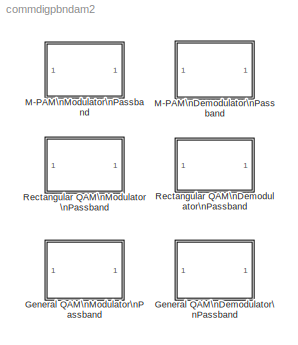
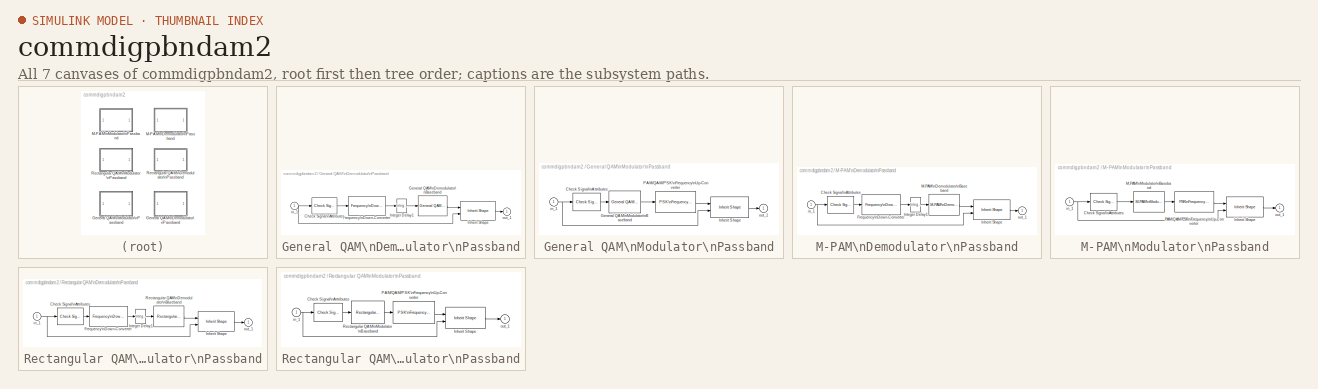
[diagram: thumbnail index - all 7 canvases of the model, root first then tree order]
MODEL commdigpbndam2
KIND library
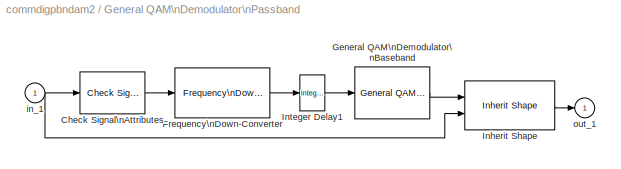
BLOCK [SubSystem] General QAM\nDemodulator\nPassband
  MaskCallbackString = |||||
  MaskDescription = Demodulate the input signal using the quadrature amplitude modulation method.\n\nThe input signal must be a sample-based scalar.
  MaskDisplay = plot(0,0,100,100,[5+1.5*[[0:.8:10] [10:1.6:20] [20:.8:30]] 50 50 50 50+15*[0 1 1 2 2 3]],[85+10*[sin([0:.8:10]*pi*2/5) sin([10:1.6:20]*pi/5) sin([20:.8:30]*pi*2/5)] 85 99 75 85+8*[1 1 -1 -1 1 1]]);\ndisp('\\nGeneral\\nQAM')
  MaskEnableString = on,on,on,on,on,on
  MaskHelp = helpview(commbhelp)
  MaskIconFrame = on
  MaskIconOpaque = on
  MaskIconRotate = none
  MaskIconUnits = autoscale
  MaskPromptString = Signal constellation:|Symbol period (s):|Baseband samples per symbol:|Carrier frequency (Hz):|Carrier initial phase (rad):|Input sample time (s):
  MaskStyleString = edit,edit,edit,edit,edit,edit
  MaskToolTipString = on,on,on,on,on,on
  MaskTunableValueString = on,on,on,on,on,on
  MaskType = General QAM Demodulator Passband
  MaskValueString = [exp(2*pi*i*[0:6]/7)]|1/100|1|3000|0|1/8000
  MaskVarAliasString = ,,,,,
  MaskVariables = SigCon=@1;td=@2;numSamp=@3;Fc=@4;Ph=@5;InSamp=@6;
  MaskVisibilityString = on,on,on,on,on,on
  Ports = [1, 1]
  TreatAsAtomicUnit = off
BLOCK [Reference] General QAM\nDemodulator\nPassband/Check Signal\nAttributes  REF=dspsigattribs/Check Signal\nAttributes
  Complexity = Ignore
  DatatypeCheckMethod = Ignore
  DatatypeGeneral = Boolean
  Dimensions = 1-D
  DimsCheckMethod = Ignore
  DtypeFixedSpecific = Any fixed-point
  DtypeFloatSpecific = Any floating-point
  DtypeIntSpecific = Any integer
  Frame = Frame-based
  Ports = [1, 1]
  SampleMode = Ignore
  SigAttribCheckMethod = Matches attributes exactly
  SourceBlock = dspsigattribs/Check Signal\nAttributes
  SourceType = Check Signal Attributes
BLOCK [Reference] General QAM\nDemodulator\nPassband/Frequency\nDown-Converter  REF=commblksprivate/Frequency\nDown-Converter
  Fc = Fc
  Ph = Ph
  Ports = [1, 1]
  SourceBlock = commblksprivate/Frequency\nDown-Converter
  SourceType = Frequency down-converter
  Tin = InSamp
  Tout = td/numSamp
BLOCK [Reference] General QAM\nDemodulator\nPassband/General QAM\nDemodulator\nBaseband  REF=commdigbbndam2/General QAM\nDemodulator\nBaseband
  Ports = [1, 1]
  SigCon = SigCon
  SourceBlock = commdigbbndam2/General QAM\nDemodulator\nBaseband
  SourceType = General QAM Demodulator Baseband
  numSamp = numSamp
BLOCK [Reference] General QAM\nDemodulator\nPassband/Inherit Shape  REF=commblksprivate/Inherit Shape
  Ports = [2, 1]
  SourceBlock = commblksprivate/Inherit Shape
  SourceType = Inherit Shape
BLOCK [Reference] General QAM\nDemodulator\nPassband/Integer Delay1  REF=dspsigops/Integer Delay
  Ports = [1, 1]
  SourceBlock = dspsigops/Integer Delay
  SourceType = Integer Delay
  delay = numSamp-1
  ic = 0
BLOCK [Inport] General QAM\nDemodulator\nPassband/in_1
BLOCK [Outport] General QAM\nDemodulator\nPassband/out_1
  InitialOutput = 0
BLOCK [SubSystem] General QAM\nModulator\nPassband
  MaskCallbackString = |||||
  MaskDescription = Modulate the input signal using the quadrature amplitude modulation method.\n\nThe block only accepts integers as input. The input signal must be a sample-based scalar. \n\nThe input sample time must equal the symbol period.
  MaskDisplay = plot(0,0,100,100,[5+15*[0 1 1 2 2 3] 50 50 50 50+1.5*[[0:.8:10] [10:1.6:20] [20:.8:30]]],[85+8*[1 1 -1 -1 1 1] 85 99 75 85+10*[sin([0:.8:10]*pi*2/5) sin([10:1.6:20]*pi/5) sin([20:.8:30]*pi*2/5)]]);\ndisp('\\nGeneral\\nQAM')
  MaskEnableString = on,on,on,on,on,on
  MaskHelp = helpview(commbhelp)
  MaskIconFrame = on
  MaskIconOpaque = on
  MaskIconRotate = none
  MaskIconUnits = autoscale
  MaskPromptString = Signal constellation:|Symbol period (s):|Baseband samples per symbol:|Carrier frequency (Hz):|Carrier initial phase (rad):|Output sample time (s):
  MaskStyleString = edit,edit,edit,edit,edit,edit
  MaskToolTipString = on,on,on,on,on,on
  MaskTunableValueString = on,on,on,on,on,on
  MaskType = General QAM Modulator Passband
  MaskValueString = [exp(2*pi*i*[0:6]/7)]|1/100|1|3000|0|1/8000
  MaskVarAliasString = ,,,,,
  MaskVariables = SigCon=@1;td=@2;numSamp=@3;Fc=@4;Ph=@5;OutSamp=@6;
  MaskVisibilityString = on,on,on,on,on,on
  Ports = [1, 1]
  TreatAsAtomicUnit = off
BLOCK [Reference] General QAM\nModulator\nPassband/Check Signal\nAttributes  REF=dspsigattribs/Check Signal\nAttributes
  Complexity = Ignore
  DatatypeCheckMethod = Ignore
  DatatypeGeneral = Boolean
  Dimensions = 1-D
  DimsCheckMethod = Ignore
  DtypeFixedSpecific = Any fixed-point
  DtypeFloatSpecific = Any floating-point
  DtypeIntSpecific = Any integer
  Frame = Frame-based
  Ports = [1, 1]
  SampleMode = Ignore
  SigAttribCheckMethod = Matches attributes exactly
  SourceBlock = dspsigattribs/Check Signal\nAttributes
  SourceType = Check Signal Attributes
BLOCK [Reference] General QAM\nModulator\nPassband/General QAM\nModulator\nBaseband  REF=commdigbbndam2/General QAM\nModulator\nBaseband
  Ports = [1, 1]
  SigCon = SigCon
  SourceBlock = commdigbbndam2/General QAM\nModulator\nBaseband
  SourceType = General QAM Modulator Baseband
  numSamp = numSamp
BLOCK [Reference] General QAM\nModulator\nPassband/Inherit Shape  REF=commblksprivate/Inherit Shape
  Ports = [2, 1]
  SourceBlock = commblksprivate/Inherit Shape
  SourceType = Inherit Shape
BLOCK [Reference] General QAM\nModulator\nPassband/PAM//QAM//PSK\nFrequency\nUp-Converter  REF=commblksprivate/PAM//QAM//PSK\nFrequency\nUp-Converter
  Fc = Fc
  Ph = Ph
  Ports = [1, 1]
  SourceBlock = commblksprivate/PAM//QAM//PSK\nFrequency\nUp-Converter
  SourceType = PAM/QAM/PSK Frequency Up-Converter
  Tin = td/numSamp
  Tout = OutSamp
BLOCK [Inport] General QAM\nModulator\nPassband/in_1
BLOCK [Outport] General QAM\nModulator\nPassband/out_1
  InitialOutput = 0
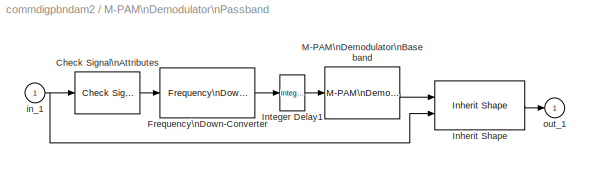
BLOCK [SubSystem] M-PAM\nDemodulator\nPassband
  MaskCallbackString = |commblkpbndpammod(gcb,'InType');||commblkpbndpammod(gcb,'PowType');||||||||
  MaskDescription = Demodulate the input signal using the pulse amplitude modulation method. The M-ary number value must be an even integer.\n\nThe input signal must be a sample-based scalar. In case of bit output, the width of the output is the number of bits per symbol. The symbols can be either binary-demapped or Gray-demapped into bits.
  MaskDisplay = plot(0,0,100,100,[5+1.5*[[0:.8:10] [10:1.6:20] [20:.8:30]] 50 50 50 50+15*[0 1 1 2 2 3]],[85+10*[sin([0:.8:10]*pi*2/5) sin([10:1.6:20]*pi/5) sin([20:.8:30]*pi*2/5)] 85 99 75 85+8*[1 1 -1 -1 1 1]]);\ndisp('M-PAM');
  MaskEnableString = on,on,off,on,on,on,on,on,on,on,on,on
  MaskHelp = helpview(commbhelp)
  MaskIconFrame = on
  MaskIconOpaque = on
  MaskIconRotate = none
  MaskIconUnits = autoscale
  MaskInitialization = commblkdyampmdemod('M-PAM Demodulator Baseband','update');\ncommblkpbndpammod(gcb,'init');\n
  MaskPromptString = M-ary number:|Output type:|Constellation ordering:|Normalization method:|Minimum distance:|Average power (watts):|Peak power (watts):|Symbol period (s):|Baseband samples per symbol:|Carrier frequency (Hz):|Carrier initial phase (rad):|Input sample time (s):
  MaskSelfModifiable = on
  MaskStyleString = edit,popup(Bit|Integer),popup(Binary|Gray),popup(Min. distance between symbols|Average Power|Peak Power),edit,edit,edit,edit,edit,edit,edit,edit
  MaskToolTipString = on,on,on,on,on,on,on,on,on,on,on,on
  MaskTunableValueString = off,off,off,off,off,off,off,off,off,off,off,off
  MaskType = M-PAM Demodulator Passband
  MaskValueString = 4|Integer|Binary|Min. distance between symbols|2|1|1|1/100|1|3000|0|1/8000
  MaskVarAliasString = ,,,,,,,,,,,
  MaskVariables = M=@1;OutType=@2;Dec=@3;PowType=@4;MinDist=@5;AvgPow=@6;PeakPow=@7;td=@8;numSamp=@9;Fc=@10;Ph=@11;InSamp=@12;
  MaskVisibilityString = on,on,on,on,on,off,off,on,on,on,on,on
  Ports = [1, 1]
  TreatAsAtomicUnit = off
BLOCK [Reference] M-PAM\nDemodulator\nPassband/Check Signal\nAttributes  REF=dspsigattribs/Check Signal\nAttributes
  Complexity = Ignore
  DatatypeCheckMethod = Ignore
  DatatypeGeneral = Boolean
  Dimensions = 1-D
  DimsCheckMethod = Ignore
  DtypeFixedSpecific = Any fixed-point
  DtypeFloatSpecific = Any floating-point
  DtypeIntSpecific = Any integer
  Frame = Frame-based
  Ports = [1, 1]
  SampleMode = Ignore
  SigAttribCheckMethod = Matches attributes exactly
  SourceBlock = dspsigattribs/Check Signal\nAttributes
  SourceType = Check Signal Attributes
BLOCK [Reference] M-PAM\nDemodulator\nPassband/Frequency\nDown-Converter  REF=commblksprivate/Frequency\nDown-Converter
  Fc = Fc
  Ph = Ph
  Ports = [1, 1]
  SourceBlock = commblksprivate/Frequency\nDown-Converter
  SourceType = Frequency down-converter
  Tin = InSamp
  Tout = td/numSamp
BLOCK [Reference] M-PAM\nDemodulator\nPassband/Inherit Shape  REF=commblksprivate/Inherit Shape
  Ports = [2, 1]
  SourceBlock = commblksprivate/Inherit Shape
  SourceType = Inherit Shape
BLOCK [Reference] M-PAM\nDemodulator\nPassband/Integer Delay1  REF=dspsigops/Integer Delay
  Ports = [1, 1]
  SourceBlock = dspsigops/Integer Delay
  SourceType = Integer Delay
  delay = numSamp-1
  ic = 0
BLOCK [Reference] M-PAM\nDemodulator\nPassband/M-PAM\nDemodulator\nBaseband  REF=commdigbbndam2/M-PAM\nDemodulator\nBaseband
  AvgPow = AvgPow
  Dec = Binary
  M = M
  MinDist = MinDist
  OutType = Integer
  PeakPow = PeakPow
  Ports = [1, 1]
  PowType = Min. distance between symbols
  SourceBlock = commdigbbndam2/M-PAM\nDemodulator\nBaseband
  SourceType = M-PAM Demodulator Baseband
  numSamp = numSamp
BLOCK [Inport] M-PAM\nDemodulator\nPassband/in_1
BLOCK [Outport] M-PAM\nDemodulator\nPassband/out_1
  InitialOutput = 0
BLOCK [SubSystem] M-PAM\nModulator\nPassband
  MaskCallbackString = |commblkpbndpammod(gcb,'InType');||commblkpbndpammod(gcb,'PowType');||||||||
  MaskDescription = Modulate the input signal using the pulse amplitude modulation method.\nThe M-ary number value must be an even integer.\n\nThe input signal must be sample-based. In case of integer input, the input must be a scalar. In case of bit input, the width of the input must equal the number of bits per symbol. The bits can be either binary-mapped or Gray-mapped into symbols.\n\nThe input sample time must e...<+23ch>
  MaskDisplay = plot(0,0,100,100,[5+15*[0 1 1 2 2 3] 50 50 50 50+1.5*[[0:.8:10] [10:1.6:20] [20:.8:30]]],[85+8*[1 1 -1 -1 1 1] 85 99 75 85+10*[sin([0:.8:10]*pi*2/5) sin([10:1.6:20]*pi/5) sin([20:.8:30]*pi*2/5)]]);\ndisp('M-PAM')
  MaskEnableString = on,on,off,on,on,on,on,on,on,on,on,on
  MaskHelp = helpview(commbhelp)
  MaskIconFrame = on
  MaskIconOpaque = on
  MaskIconRotate = none
  MaskIconUnits = autoscale
  MaskInitialization = commblkdyampmmod('M-PAM Modulator Baseband','update');\ncommblkpbndpammod(gcb,'init');\n
  MaskPromptString = M-ary number:|Input type:|Constellation ordering:|Normalization method:|Minimum distance:|Average power (watts):|Peak power (watts):|Symbol period (s):|Baseband samples per symbol:|Carrier frequency (Hz):|Carrier initial phase (rad):|Output sample time (s):
  MaskSelfModifiable = on
  MaskStyleString = edit,popup(Bit|Integer),popup(Binary|Gray),popup(Min. distance between symbols|Average Power|Peak Power),edit,edit,edit,edit,edit,edit,edit,edit
  MaskToolTipString = on,on,on,on,on,on,on,on,on,on,on,on
  MaskTunableValueString = off,off,off,off,off,off,off,off,off,off,off,off
  MaskType = M-PAM Modulator Passband
  MaskValueString = 4|Integer|Binary|Min. distance between symbols|2|1|1|1/100|1|3000|0|1/8000
  MaskVarAliasString = ,,,,,,,,,,,
  MaskVariables = M=@1;InType=@2;Enc=@3;PowType=@4;MinDist=@5;AvgPow=@6;PeakPow=@7;td=@8;numSamp=@9;Fc=@10;Ph=@11;OutSamp=@12;
  MaskVisibilityString = on,on,on,on,on,off,off,on,on,on,on,on
  Ports = [1, 1]
  TreatAsAtomicUnit = off
BLOCK [Reference] M-PAM\nModulator\nPassband/Check Signal\nAttributes  REF=dspsigattribs/Check Signal\nAttributes
  Complexity = Ignore
  DatatypeCheckMethod = Ignore
  DatatypeGeneral = Boolean
  Dimensions = 1-D
  DimsCheckMethod = Ignore
  DtypeFixedSpecific = Any fixed-point
  DtypeFloatSpecific = Any floating-point
  DtypeIntSpecific = Any integer
  Frame = Frame-based
  Ports = [1, 1]
  SampleMode = Ignore
  SigAttribCheckMethod = Matches attributes exactly
  SourceBlock = dspsigattribs/Check Signal\nAttributes
  SourceType = Check Signal Attributes
BLOCK [Reference] M-PAM\nModulator\nPassband/Inherit Shape  REF=commblksprivate/Inherit Shape
  Ports = [2, 1]
  SourceBlock = commblksprivate/Inherit Shape
  SourceType = Inherit Shape
BLOCK [Reference] M-PAM\nModulator\nPassband/M-PAM\nModulator\nBaseband  REF=commdigbbndam2/M-PAM\nModulator\nBaseband
  AvgPow = AvgPow
  Enc = Binary
  InType = Integer
  M = M
  MinDist = MinDist
  PeakPow = PeakPow
  Ports = [1, 1]
  PowType = Min. distance between symbols
  SourceBlock = commdigbbndam2/M-PAM\nModulator\nBaseband
  SourceType = M-PAM Modulator Baseband
  numSamp = numSamp
BLOCK [Reference] M-PAM\nModulator\nPassband/PAM//QAM//PSK\nFrequency\nUp-Converter  REF=commblksprivate/PAM//QAM//PSK\nFrequency\nUp-Converter
  Fc = Fc
  Ph = Ph
  Ports = [1, 1]
  SourceBlock = commblksprivate/PAM//QAM//PSK\nFrequency\nUp-Converter
  SourceType = PAM/QAM/PSK Frequency Up-Converter
  Tin = td/numSamp
  Tout = OutSamp
BLOCK [Inport] M-PAM\nModulator\nPassband/in_1
BLOCK [Outport] M-PAM\nModulator\nPassband/out_1
  InitialOutput = 0
BLOCK [SubSystem] Rectangular QAM\nDemodulator\nPassband
  MaskCallbackString = |commblkpbndqammod(gcb,'InType');||commblkpbndqammod(gcb,'PowType');||||||||
  MaskDescription = Demodulate the input signal using the rectangular quadrature amplitude modulation method.\nThe M-ary number value needs to be an integer power of two.\n\nThe input signal must be a sample-based scalar. In case of bit output, the width of the output is the number of bits per symbol. The symbols can be either binary-demapped or Gray-demapped into bits.
  MaskDisplay = plot(0,0,100,100,[5+1.5*[[0:.8:10] [10:1.6:20] [20:.8:30]] 50 50 50 50+15*[0 1 1 2 2 3]],[85+10*[sin([0:.8:10]*pi*2/5) sin([10:1.6:20]*pi/5) sin([20:.8:30]*pi*2/5)] 85 99 75 85+8*[1 1 -1 -1 1 1]]);\ndisp('\\nRectangular\\nQAM')
  MaskEnableString = on,on,off,on,on,on,on,on,on,on,on,on
  MaskHelp = helpview(commbhelp)
  MaskIconFrame = on
  MaskIconOpaque = on
  MaskIconRotate = none
  MaskIconUnits = autoscale
  MaskInitialization = commblkdyampmdemod('Rectangular QAM Demodulator Baseband','update');\ncommblkpbndqammod(gcb,'init');\n
  MaskPromptString = M-ary number:|Output type:|Constellation ordering:|Normalization method:|Minimum distance:|Average power (watts):|Peak power (watts):|Symbol period (s):|Baseband samples per symbol:|Carrier frequency (Hz):|Carrier initial phase (rad):|Input sample time (s):
  MaskSelfModifiable = on
  MaskStyleString = edit,popup(Bit|Integer),popup(Binary|Gray),popup(Min. distance between symbols|Average Power|Peak Power),edit,edit,edit,edit,edit,edit,edit,edit
  MaskToolTipString = on,on,on,on,on,on,on,on,on,on,on,on
  MaskTunableValueString = off,off,off,off,off,off,off,off,off,off,off,off
  MaskType = Rectangular QAM Demodulator Passband
  MaskValueString = 16|Integer|Binary|Min. distance between symbols|2|1|1|1/100|1|3000|0|1/8000
  MaskVarAliasString = ,,,,,,,,,,,
  MaskVariables = M=@1;OutType=@2;Dec=@3;PowType=@4;MinDist=@5;AvgPow=@6;PeakPow=@7;td=@8;numSamp=@9;Fc=@10;Ph=@11;InSamp=@12;
  MaskVisibilityString = on,on,on,on,on,off,off,on,on,on,on,on
  Ports = [1, 1]
  TreatAsAtomicUnit = off
BLOCK [Reference] Rectangular QAM\nDemodulator\nPassband/Check Signal\nAttributes  REF=dspsigattribs/Check Signal\nAttributes
  Complexity = Ignore
  DatatypeCheckMethod = Ignore
  DatatypeGeneral = Boolean
  Dimensions = 1-D
  DimsCheckMethod = Ignore
  DtypeFixedSpecific = Any fixed-point
  DtypeFloatSpecific = Any floating-point
  DtypeIntSpecific = Any integer
  Frame = Frame-based
  Ports = [1, 1]
  SampleMode = Ignore
  SigAttribCheckMethod = Matches attributes exactly
  SourceBlock = dspsigattribs/Check Signal\nAttributes
  SourceType = Check Signal Attributes
BLOCK [Reference] Rectangular QAM\nDemodulator\nPassband/Frequency\nDown-Converter  REF=commblksprivate/Frequency\nDown-Converter
  Fc = Fc
  Ph = Ph
  Ports = [1, 1]
  SourceBlock = commblksprivate/Frequency\nDown-Converter
  SourceType = Frequency down-converter
  Tin = InSamp
  Tout = td/numSamp
BLOCK [Reference] Rectangular QAM\nDemodulator\nPassband/Inherit Shape  REF=commblksprivate/Inherit Shape
  Ports = [2, 1]
  SourceBlock = commblksprivate/Inherit Shape
  SourceType = Inherit Shape
BLOCK [Reference] Rectangular QAM\nDemodulator\nPassband/Integer Delay1  REF=dspsigops/Integer Delay
  Ports = [1, 1]
  SourceBlock = dspsigops/Integer Delay
  SourceType = Integer Delay
  delay = numSamp-1
  ic = 0
BLOCK [Reference] Rectangular QAM\nDemodulator\nPassband/Rectangular QAM\nDemodulator\nBaseband  REF=commdigbbndam2/Rectangular QAM\nDemodulator\nBaseband
  AvgPow = AvgPow
  Dec = Binary
  M = M
  MinDist = MinDist
  OutType = Integer
  PeakPow = PeakPow
  Ph = 0
  Ports = [1, 1]
  PowType = Min. distance between symbols
  SourceBlock = commdigbbndam2/Rectangular QAM\nDemodulator\nBaseband
  SourceType = Rectangular QAM Demodulator Baseband
  numSamp = numSamp
BLOCK [Inport] Rectangular QAM\nDemodulator\nPassband/in_1
BLOCK [Outport] Rectangular QAM\nDemodulator\nPassband/out_1
  InitialOutput = 0
BLOCK [SubSystem] Rectangular QAM\nModulator\nPassband
  MaskCallbackString = |commblkpbndqammod(gcb,'InType');||commblkpbndqammod(gcb,'PowType');||||||||
  MaskDescription = Modulate the input signal using the rectangular quadrature amplitude modulation method.\nThe M-ary number value must be an integer power of two.\n\nThe input signal must be sample-based. In case of integer input, the input must be a scalar. In case of bit input, the width of the input must equal the number of bits per symbol. The bits can be either binary-mapped or Gray-mapped into symbols.\n\nThe...<+48ch>
  MaskDisplay = plot(0,0,100,100,[5+15*[0 1 1 2 2 3] 50 50 50 50+1.5*[[0:.8:10] [10:1.6:20] [20:.8:30]]],[85+8*[1 1 -1 -1 1 1] 85 99 75 85+10*[sin([0:.8:10]*pi*2/5) sin([10:1.6:20]*pi/5) sin([20:.8:30]*pi*2/5)]]);\ndisp('\\nRectangular\\nQAM')
  MaskEnableString = on,on,off,on,on,on,on,on,on,on,on,on
  MaskHelp = helpview(commbhelp)
  MaskIconFrame = on
  MaskIconOpaque = on
  MaskIconRotate = none
  MaskIconUnits = autoscale
  MaskInitialization = commblkdyampmmod('Rectangular QAM Modulator Baseband','update');\ncommblkpbndqammod(gcb,'init');\n
  MaskPromptString = M-ary number:|Input type:|Constellation ordering:|Normalization method:|Minimum distance:|Average power (watts):|Peak power (watts):|Symbol period (s):|Baseband samples per symbol:|Carrier frequency (Hz):|Carrier initial phase (rad):|Output sample time (s):
  MaskSelfModifiable = on
  MaskStyleString = edit,popup(Bit|Integer),popup(Binary|Gray),popup(Min. distance between symbols|Average Power|Peak Power),edit,edit,edit,edit,edit,edit,edit,edit
  MaskToolTipString = on,on,on,on,on,on,on,on,on,on,on,on
  MaskTunableValueString = off,off,off,off,off,off,off,off,off,off,off,off
  MaskType = Rectangular QAM Modulator Passband
  MaskValueString = 16|Integer|Binary|Min. distance between symbols|2|1|1|1/100|1|3000|0|1/8000
  MaskVarAliasString = ,,,,,,,,,,,
  MaskVariables = M=@1;InType=@2;Enc=@3;PowType=@4;MinDist=@5;AvgPow=@6;PeakPow=@7;td=@8;numSamp=@9;Fc=@10;Ph=@11;OutSamp=@12;
  MaskVisibilityString = on,on,on,on,on,off,off,on,on,on,on,on
  Ports = [1, 1]
  TreatAsAtomicUnit = off
BLOCK [Reference] Rectangular QAM\nModulator\nPassband/Check Signal\nAttributes  REF=dspsigattribs/Check Signal\nAttributes
  Complexity = Ignore
  DatatypeCheckMethod = Ignore
  DatatypeGeneral = Boolean
  Dimensions = 1-D
  DimsCheckMethod = Ignore
  DtypeFixedSpecific = Any fixed-point
  DtypeFloatSpecific = Any floating-point
  DtypeIntSpecific = Any integer
  Frame = Frame-based
  Ports = [1, 1]
  SampleMode = Ignore
  SigAttribCheckMethod = Matches attributes exactly
  SourceBlock = dspsigattribs/Check Signal\nAttributes
  SourceType = Check Signal Attributes
BLOCK [Reference] Rectangular QAM\nModulator\nPassband/Inherit Shape  REF=commblksprivate/Inherit Shape
  Ports = [2, 1]
  SourceBlock = commblksprivate/Inherit Shape
  SourceType = Inherit Shape
BLOCK [Reference] Rectangular QAM\nModulator\nPassband/PAM//QAM//PSK\nFrequency\nUp-Converter  REF=commblksprivate/PAM//QAM//PSK\nFrequency\nUp-Converter
  Fc = Fc
  Ph = Ph
  Ports = [1, 1]
  SourceBlock = commblksprivate/PAM//QAM//PSK\nFrequency\nUp-Converter
  SourceType = PAM/QAM/PSK Frequency Up-Converter
  Tin = td/numSamp
  Tout = OutSamp
BLOCK [Reference] Rectangular QAM\nModulator\nPassband/Rectangular QAM\nModulator\nBaseband  REF=commdigbbndam2/Rectangular QAM\nModulator\nBaseband
  AvgPow = AvgPow
  Enc = Binary
  InType = Integer
  M = M
  MinDist = MinDist
  PeakPow = PeakPow
  Ph = 0
  Ports = [1, 1]
  PowType = Min. distance between symbols
  SourceBlock = commdigbbndam2/Rectangular QAM\nModulator\nBaseband
  SourceType = Rectangular QAM Modulator Baseband
  numSamp = numSamp
BLOCK [Inport] Rectangular QAM\nModulator\nPassband/in_1
BLOCK [Outport] Rectangular QAM\nModulator\nPassband/out_1
  InitialOutput = 0
LINE General QAM\nDemodulator\nPassband/Check Signal\nAttributes:1 -> General QAM\nDemodulator\nPassband/Frequency\nDown-Converter:1
LINE General QAM\nDemodulator\nPassband/Frequency\nDown-Converter:1 -> General QAM\nDemodulator\nPassband/Integer Delay1:1
LINE General QAM\nDemodulator\nPassband/General QAM\nDemodulator\nBaseband:1 -> General QAM\nDemodulator\nPassband/Inherit Shape:1
LINE General QAM\nDemodulator\nPassband/Inherit Shape:1 -> General QAM\nDemodulator\nPassband/out_1:1
LINE General QAM\nDemodulator\nPassband/Integer Delay1:1 -> General QAM\nDemodulator\nPassband/General QAM\nDemodulator\nBaseband:1
NET General QAM\nDemodulator\nPassband/in_1:1 -> General QAM\nDemodulator\nPassband/Check Signal\nAttributes:1, General QAM\nDemodulator\nPassband/Inherit Shape:2
LINE General QAM\nModulator\nPassband/Check Signal\nAttributes:1 -> General QAM\nModulator\nPassband/General QAM\nModulator\nBaseband:1
LINE General QAM\nModulator\nPassband/General QAM\nModulator\nBaseband:1 -> General QAM\nModulator\nPassband/PAM//QAM//PSK\nFrequency\nUp-Converter:1
LINE General QAM\nModulator\nPassband/Inherit Shape:1 -> General QAM\nModulator\nPassband/out_1:1
LINE General QAM\nModulator\nPassband/PAM//QAM//PSK\nFrequency\nUp-Converter:1 -> General QAM\nModulator\nPassband/Inherit Shape:1
NET General QAM\nModulator\nPassband/in_1:1 -> General QAM\nModulator\nPassband/Check Signal\nAttributes:1, General QAM\nModulator\nPassband/Inherit Shape:2
LINE M-PAM\nDemodulator\nPassband/Check Signal\nAttributes:1 -> M-PAM\nDemodulator\nPassband/Frequency\nDown-Converter:1
LINE M-PAM\nDemodulator\nPassband/Frequency\nDown-Converter:1 -> M-PAM\nDemodulator\nPassband/Integer Delay1:1
LINE M-PAM\nDemodulator\nPassband/Inherit Shape:1 -> M-PAM\nDemodulator\nPassband/out_1:1
LINE M-PAM\nDemodulator\nPassband/Integer Delay1:1 -> M-PAM\nDemodulator\nPassband/M-PAM\nDemodulator\nBaseband:1
LINE M-PAM\nDemodulator\nPassband/M-PAM\nDemodulator\nBaseband:1 -> M-PAM\nDemodulator\nPassband/Inherit Shape:1
NET M-PAM\nDemodulator\nPassband/in_1:1 -> M-PAM\nDemodulator\nPassband/Check Signal\nAttributes:1, M-PAM\nDemodulator\nPassband/Inherit Shape:2
LINE M-PAM\nModulator\nPassband/Check Signal\nAttributes:1 -> M-PAM\nModulator\nPassband/M-PAM\nModulator\nBaseband:1
LINE M-PAM\nModulator\nPassband/Inherit Shape:1 -> M-PAM\nModulator\nPassband/out_1:1
LINE M-PAM\nModulator\nPassband/M-PAM\nModulator\nBaseband:1 -> M-PAM\nModulator\nPassband/PAM//QAM//PSK\nFrequency\nUp-Converter:1
LINE M-PAM\nModulator\nPassband/PAM//QAM//PSK\nFrequency\nUp-Converter:1 -> M-PAM\nModulator\nPassband/Inherit Shape:1
NET M-PAM\nModulator\nPassband/in_1:1 -> M-PAM\nModulator\nPassband/Check Signal\nAttributes:1, M-PAM\nModulator\nPassband/Inherit Shape:2
LINE Rectangular QAM\nDemodulator\nPassband/Check Signal\nAttributes:1 -> Rectangular QAM\nDemodulator\nPassband/Frequency\nDown-Converter:1
LINE Rectangular QAM\nDemodulator\nPassband/Frequency\nDown-Converter:1 -> Rectangular QAM\nDemodulator\nPassband/Integer Delay1:1
LINE Rectangular QAM\nDemodulator\nPassband/Inherit Shape:1 -> Rectangular QAM\nDemodulator\nPassband/out_1:1
LINE Rectangular QAM\nDemodulator\nPassband/Integer Delay1:1 -> Rectangular QAM\nDemodulator\nPassband/Rectangular QAM\nDemodulator\nBaseband:1
LINE Rectangular QAM\nDemodulator\nPassband/Rectangular QAM\nDemodulator\nBaseband:1 -> Rectangular QAM\nDemodulator\nPassband/Inherit Shape:1
NET Rectangular QAM\nDemodulator\nPassband/in_1:1 -> Rectangular QAM\nDemodulator\nPassband/Check Signal\nAttributes:1, Rectangular QAM\nDemodulator\nPassband/Inherit Shape:2
LINE Rectangular QAM\nModulator\nPassband/Check Signal\nAttributes:1 -> Rectangular QAM\nModulator\nPassband/Rectangular QAM\nModulator\nBaseband:1
LINE Rectangular QAM\nModulator\nPassband/Inherit Shape:1 -> Rectangular QAM\nModulator\nPassband/out_1:1
LINE Rectangular QAM\nModulator\nPassband/PAM//QAM//PSK\nFrequency\nUp-Converter:1 -> Rectangular QAM\nModulator\nPassband/Inherit Shape:1
LINE Rectangular QAM\nModulator\nPassband/Rectangular QAM\nModulator\nBaseband:1 -> Rectangular QAM\nModulator\nPassband/PAM//QAM//PSK\nFrequency\nUp-Converter:1
NET Rectangular QAM\nModulator\nPassband/in_1:1 -> Rectangular QAM\nModulator\nPassband/Check Signal\nAttributes:1, Rectangular QAM\nModulator\nPassband/Inherit Shape:2
note: NET lines group one-source signal fan-out (src -> all destinations, sorted); 1:1 wires keep LINE
